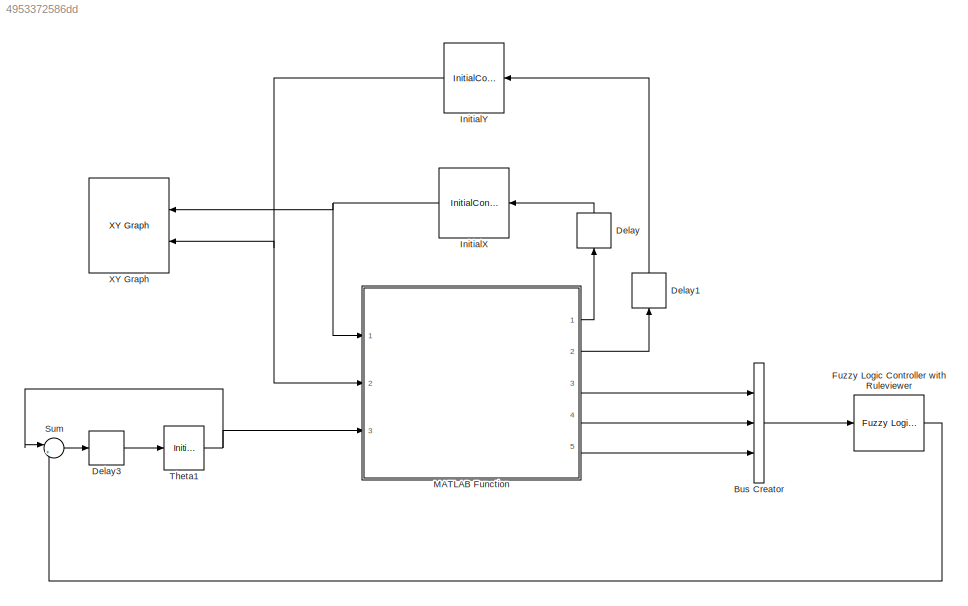
MODEL slx_4953372586dd
KIND model
CONFIG AbsTol = auto
CONFIG EnableMultiTasking = off
CONFIG FixedStep = auto
CONFIG MaxStep = auto
CONFIG MinStep = auto
CONFIG RelTol = 1e-8
CONFIG SampleTimeConstraint = Unconstrained
CONFIG Solver = VariableStepAuto
CONFIG SolverName = VariableStepAuto
CONFIG StartTime = 0.0
CONFIG StopTime = 5
BLOCK [BusCreator] Bus Creator
  DisplayOption = bar
  InheritFromInputs = on
  Inputs = 3
  Ports = [3, 1]
BLOCK [Delay] Delay
  DelayLength = 1
  InitialCondition = 0
  InputPortMap = u0
  Ports = [1, 1]
BLOCK [Delay] Delay1
  DelayLength = 1
  InitialCondition = 0
  InputPortMap = u0
  Ports = [1, 1]
BLOCK [Delay] Delay3
  DelayLength = 1
  InitialCondition = 0
  InputPortMap = u0
  Ports = [1, 1]
BLOCK [Reference] Fuzzy Logic Controller with Ruleviewer  REF=fuzblock/Fuzzy Logic   (lib defined in mdl_858b3b3e7478)
Controller 
with Ruleviewer
  Ports = [1, 1]
  SourceBlock = fuzblock/Fuzzy Logic \nController \nwith Ruleviewer
  SourceProductBaseCode = FL
  SourceProductName = Fuzzy Logic Toolbox
  SourceType = Fuzzy Inference System
BLOCK [InitialCondition] InitialX
  Value = 4.1
BLOCK [InitialCondition] InitialY
  Value = 0.3
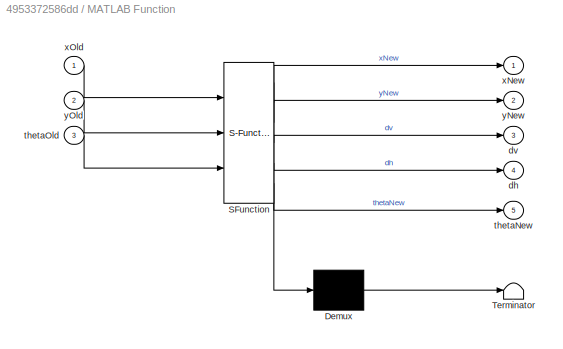
BLOCK [SubSystem] MATLAB Function
  ErrorFcn = Stateflow.Translate.translate
  PermitHierarchicalResolution = ExplicitOnly
  Ports = [3, 5]
  RequestExecContextInheritance = off
  SFBlockType = MATLAB Function
  TreatAsAtomicUnit = on
BLOCK [Demux] MATLAB Function/ Demux 
  Outputs = 1
  Ports = [1, 1]
BLOCK [S-Function] MATLAB Function/ SFunction 
  EnableBusSupport = on
  FunctionName = sf_sfun
  PortCounts = [3 6]
  Ports = [3, 6]
  SFcnIsStateOwnerBlock = off
  SFunctionDeploymentMode = off
  Tag = Stateflow S-Function CarControl 2
BLOCK [Terminator] MATLAB Function/ Terminator 
BLOCK [Outport] MATLAB Function/dh
  IconDisplay = Port number
  Port = 4
BLOCK [Outport] MATLAB Function/dv
  IconDisplay = Port number
  Port = 3
BLOCK [Outport] MATLAB Function/thetaNew
  IconDisplay = Port number
  Port = 5
BLOCK [Inport] MATLAB Function/thetaOld
  IconDisplay = Port number
  Port = 3
BLOCK [Outport] MATLAB Function/xNew
  IconDisplay = Port number
BLOCK [Inport] MATLAB Function/xOld
  IconDisplay = Port number
BLOCK [Outport] MATLAB Function/yNew
  IconDisplay = Port number
  Port = 2
BLOCK [Inport] MATLAB Function/yOld
  IconDisplay = Port number
  Port = 2
BLOCK [Sum] Sum
  IconShape = round
  InputSameDT = off
  Inputs = |++
  OutDataTypeStr = Inherit: Inherit via internal rule
  Ports = [2, 1]
  SaturateOnIntegerOverflow = off
BLOCK [InitialCondition] Theta1
  Value = 0
BLOCK [Reference] XY Graph  REF=simulink/Sinks/XY Graph
  Ports = [2]
  SourceBlock = simulink/Sinks/XY Graph
  SourceProductBaseCode = SL
  SourceProductName = Simulink
  SourceType = XY scope.
LINE Bus Creator:1 -> Fuzzy Logic Controller with Ruleviewer:1
LINE Delay1:1 -> InitialY:1
LINE Delay3:1 -> Theta1:1
LINE Delay:1 -> InitialX:1
LINE Fuzzy Logic Controller with Ruleviewer:1 -> Sum:2
NET InitialX:1 -> MATLAB Function:1, XY Graph:1
NET InitialY:1 -> MATLAB Function:2, XY Graph:2
LINE MATLAB Function:1 -> Delay:1
LINE MATLAB Function:2 -> Delay1:1
LINE MATLAB Function:3 -> Bus Creator:1
LINE MATLAB Function:4 -> Bus Creator:2
LINE MATLAB Function:5 -> Bus Creator:3
LINE Sum:1 -> Delay3:1
NET Theta1:1 -> MATLAB Function:3, Sum:1
note: NET lines group one-source signal fan-out (src -> all destinations, sorted); 1:1 wires keep LINE
CHART MATLAB Function states=1 transitions=1
  STATE_LABEL 'eML_blk_kernel()'
  STATE_LABEL 'SCRIPT:\nfunction [xNew,yNew,dv,dh,thetaNew]= fcn(xOld,yOld,thetaOld)\n    theta = thetaOld;\n    thetaNew = theta;\n    thetaRadians = theta/360*2*pi;\n    \n    if( theta < -180 )\n        theta = -180;\n    end\n    \n    if( theta > 180 )\n        theta = 180;\n    end\n    \n    \n    % calculate new coordinates\n    u = 0.05;\n    dx = u * cos(thetaRadians);\n    dy = u * sin(thetaRadians);\n    \n    dv = 0;\n ...<+637ch>'
